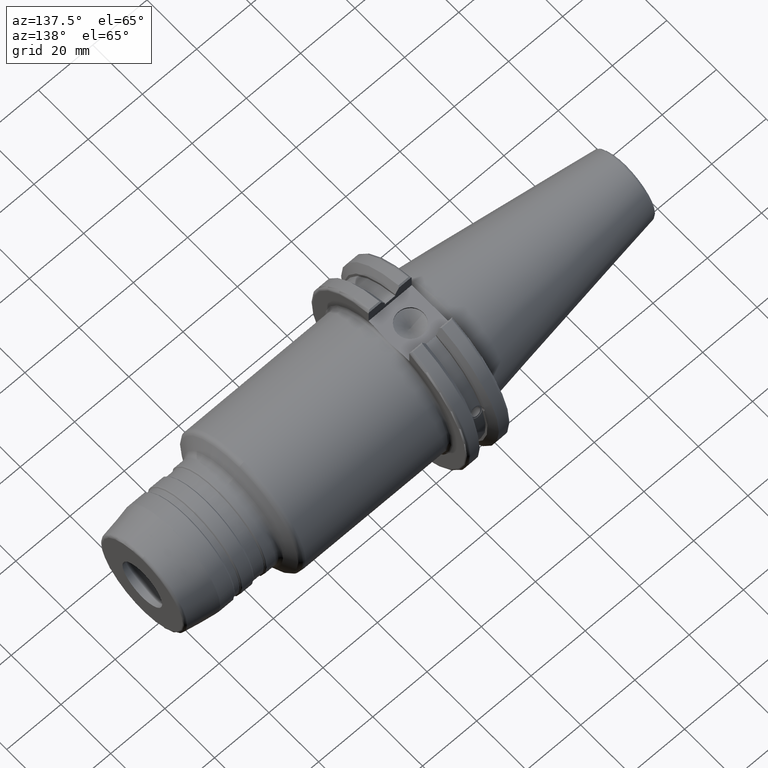
[diagram: clean part render]
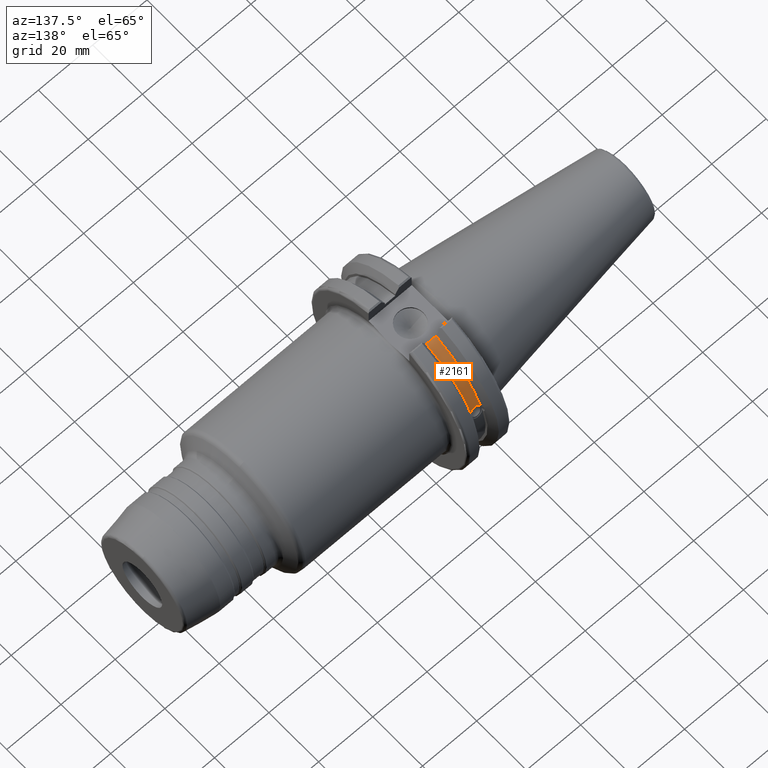
[diagram: same view with one face highlighted and labeled with its STEP entity id]
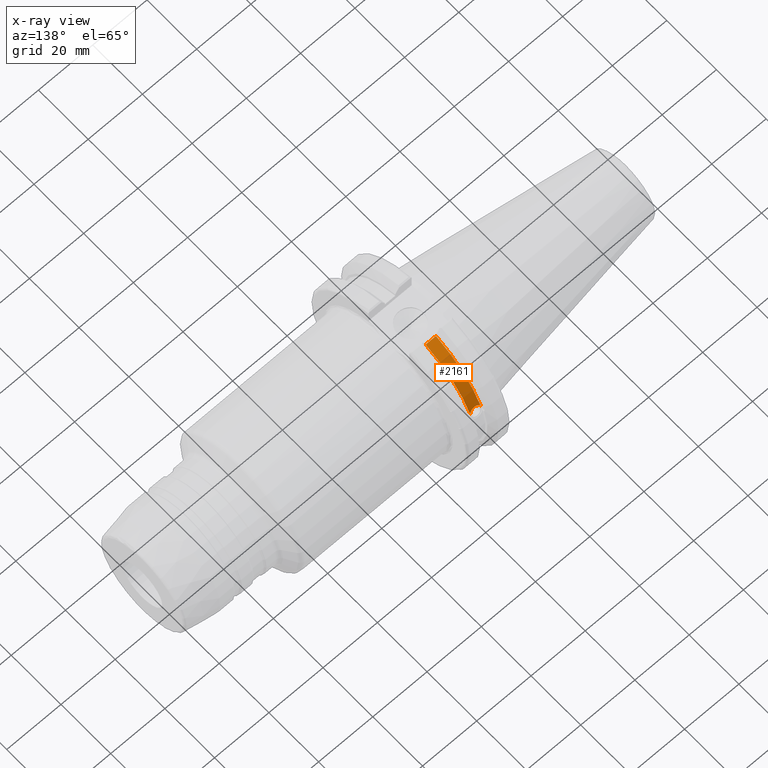
[diagram: x-ray of the same camera — body ghosted, the highlighted face saturated]
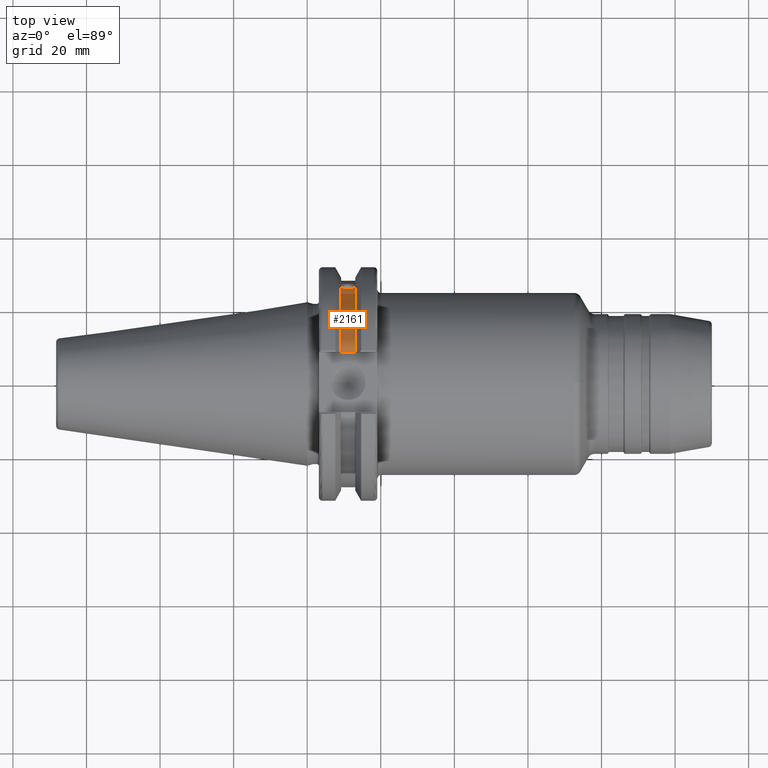
[diagram: same view with one face highlighted and labeled with its STEP entity id]
A machine part, auxiliary view. The second image highlights one B-rep face of the part: STEP entity #2161.
The next image is the same camera in x-ray: the body ghosted, the highlighted face saturated — about 0% of this face is hidden behind the body in this view.
A second angle (top view) of the same face is appended — the face is thin or edge-on in the first view.
In plain terms, the highlighted cylindrical surface (partial cylindrical patch) has radius 28.15 mm, axis along (1, 0, 0).
Its self-contained STEP definition (entity closure, byte-faithful):
#151=B_SPLINE_CURVE_WITH_KNOTS('',3,(#3834,#3835,#3836,#3837,#3838,#3839,
#3840,#3841,#3842,#3843,#3844,#3845,#3846,#3847,#3848),.UNSPECIFIED.,.F.,
 .F.,(4,2,2,3,2,2,4),(-0.231446873660082,-0.158271583089134,-0.0791357915445672,
0.,0.0791357915445672,0.158271583089134,0.231446873660465),
 .UNSPECIFIED.);
#262=FACE_OUTER_BOUND('',#381,.T.);
#381=EDGE_LOOP('',(#1963,#1964,#1965,#1966));
#460=LINE('',#4001,#554);
#554=VECTOR('',#3040,10.);
#753=CIRCLE('',#2474,28.15);
#754=CIRCLE('',#2476,28.15);
#923=VERTEX_POINT('',#3831);
#924=VERTEX_POINT('',#3833);
#965=VERTEX_POINT('',#3998);
#966=VERTEX_POINT('',#4000);
#1217=EDGE_CURVE('',#924,#923,#151,.T.);
#1271=EDGE_CURVE('',#966,#965,#460,.T.);
#1335=EDGE_CURVE('',#923,#966,#753,.T.);
#1336=EDGE_CURVE('',#924,#965,#754,.T.);
#1963=ORIENTED_EDGE('',*,*,#1217,.T.);
#1964=ORIENTED_EDGE('',*,*,#1335,.T.);
#1965=ORIENTED_EDGE('',*,*,#1271,.T.);
#1966=ORIENTED_EDGE('',*,*,#1336,.F.);
#2064=CYLINDRICAL_SURFACE('',#2475,28.15);
#2161=ADVANCED_FACE('',(#262),#2064,.T.);
#2474=AXIS2_PLACEMENT_3D('',#4211,#3151,#3152);
#2475=AXIS2_PLACEMENT_3D('',#4212,#3153,#3154);
#2476=AXIS2_PLACEMENT_3D('',#4213,#3155,#3156);
#3040=DIRECTION('',(1.,0.,0.));
#3151=DIRECTION('center_axis',(1.,0.,0.));
#3152=DIRECTION('ref_axis',(0.,0.,-1.));
#3153=DIRECTION('center_axis',(1.,0.,0.));
#3154=DIRECTION('ref_axis',(0.,1.,0.));
#3155=DIRECTION('center_axis',(1.,0.,0.));
#3156=DIRECTION('ref_axis',(0.,0.,-1.));
#3831=CARTESIAN_POINT('',(9.2191,26.1451788594704,10.4332220529567));
#3833=CARTESIAN_POINT('',(13.0491,26.1451788594704,10.4332220529568));
#3834=CARTESIAN_POINT('Ctrl Pts',(13.0491,26.1451788594704,10.4332220529568));
#3835=CARTESIAN_POINT('Ctrl Pts',(12.9428694290343,26.0576536126147,10.6525563316816));
#3836=CARTESIAN_POINT('Ctrl Pts',(12.791379862294,25.9751489313128,10.8509873904882));
#3837=CARTESIAN_POINT('Ctrl Pts',(12.4326293734259,25.8346412777187,11.1816210830117));
#3838=CARTESIAN_POINT('Ctrl Pts',(12.1965549887012,25.7695111693635,11.3298867884858));
#3839=CARTESIAN_POINT('Ctrl Pts',(11.6791874573612,25.6822868299377,11.5262389251846));
#3840=CARTESIAN_POINT('Ctrl Pts',(11.3978859718152,25.6603958057616,11.5743935949859));
#3841=CARTESIAN_POINT('Ctrl Pts',(11.1341,25.6603958057616,11.5743935949859));
#3842=CARTESIAN_POINT('Ctrl Pts',(10.8703140281848,25.6603958057616,11.5743935949859));
#3843=CARTESIAN_POINT('Ctrl Pts',(10.5890125426388,25.6822868299377,11.5262389251846));
#3844=CARTESIAN_POINT('Ctrl Pts',(10.0716450112988,25.7695111693635,11.3298867884858));
#3845=CARTESIAN_POINT('Ctrl Pts',(9.83557062657411,25.8346412777187,11.1816210830117));
#3846=CARTESIAN_POINT('Ctrl Pts',(9.4768201377051,25.9751489313131,10.8509873904873));
#3847=CARTESIAN_POINT('Ctrl Pts',(9.32533057097183,26.0576536126096,10.6525563316942));
#3848=CARTESIAN_POINT('Ctrl Pts',(9.2191,26.1451788594704,10.4332220529567));
#3998=CARTESIAN_POINT('',(13.0491,8.19,26.932255754021));
#4000=CARTESIAN_POINT('',(9.2191,8.19,26.932255754021));
#4001=CARTESIAN_POINT('',(11.1341,8.19,26.932255754021));
#4211=CARTESIAN_POINT('Origin',(9.2191,0.,0.));
#4212=CARTESIAN_POINT('Origin',(11.1341,0.,0.));
#4213=CARTESIAN_POINT('Origin',(13.0491,0.,0.));